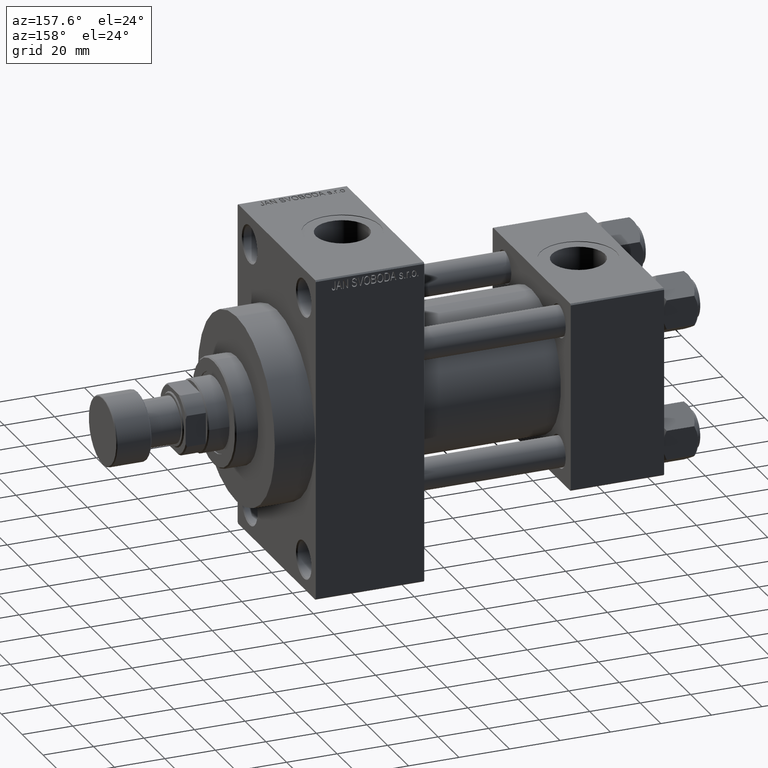
[diagram: clean part render]
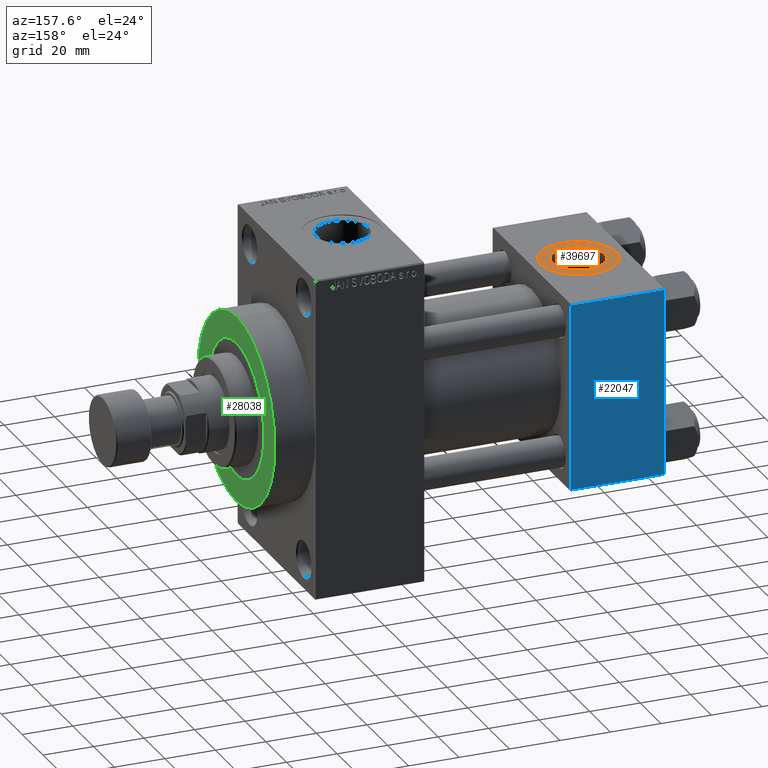
[diagram: same view with three faces highlighted in distinct colors, each labeled with its STEP entity id]
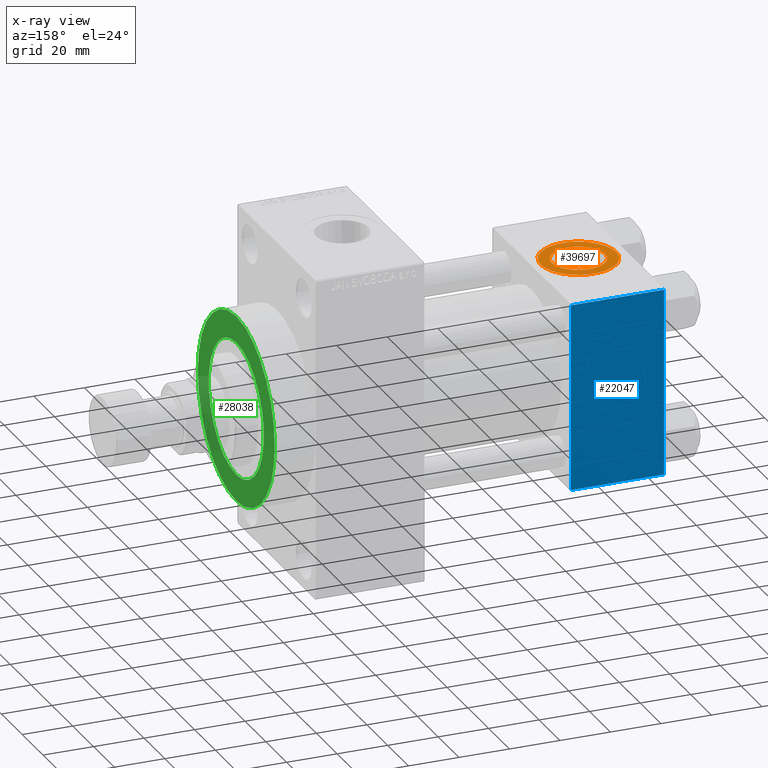
[diagram: x-ray of the same camera — body ghosted, the three highlighted faces saturated]
A machine part, auxiliary view with three faces highlighted in distinct colors.
The next image is the same camera in x-ray (body ghosted, the three faces saturated) — at least one of them is partly hidden behind the body in this view.
Their STEP definitions:

[orange] entity #39697 — the highlighted planar face has unit normal (0, 0, 1).
#929 = ORIENTED_EDGE ( 'NONE', *, *, #27861, .T. ) ;
#1139 = ORIENTED_EDGE ( 'NONE', *, *, #11661, .F. ) ;
#1948 = AXIS2_PLACEMENT_3D ( 'NONE', #10782, #3567, #5462 ) ;
#2655 = ORIENTED_EDGE ( 'NONE', *, *, #31193, .F. ) ;
#2881 = EDGE_LOOP ( 'NONE', ( #39217, #929 ) ) ;
#3068 = DIRECTION ( 'NONE',  ( 1.000000000000000000, 0.000000000000000000, 0.000000000000000000 ) ) ;
#3567 = DIRECTION ( 'NONE',  ( 0.000000000000000000, 0.000000000000000000, 1.000000000000000000 ) ) ;
#5462 = DIRECTION ( 'NONE',  ( 1.000000000000000000, 0.000000000000000000, -0.000000000000000000 ) ) ;
#5525 = AXIS2_PLACEMENT_3D ( 'NONE', #6222, #14387, #39707 ) ;
#5624 = DIRECTION ( 'NONE',  ( 1.000000000000000000, 0.000000000000000000, 0.000000000000000000 ) ) ;
#6222 = CARTESIAN_POINT ( 'NONE',  ( 18.50000000000000000, -5.204170427930421283E-15, 37.29999999999999716 ) ) ;
#7821 = CIRCLE ( 'NONE', #16268, 10.48000000000000043 ) ;
#7885 = FACE_OUTER_BOUND ( 'NONE', #2881, .T. ) ;
#8834 = EDGE_CURVE ( 'NONE', #23267, #10880, #40045, .T. ) ;
#9671 = VERTEX_POINT ( 'NONE', #18801 ) ;
#10782 = CARTESIAN_POINT ( 'NONE',  ( 18.50000000000000000, -5.204170427930421283E-15, 37.29999999999999716 ) ) ;
#10880 = VERTEX_POINT ( 'NONE', #39317 ) ;
#11398 = CARTESIAN_POINT ( 'NONE',  ( 18.50000000000000000, -5.204170427930421283E-15, 37.29999999999999716 ) ) ;
#11661 = EDGE_CURVE ( 'NONE', #9671, #43694, #7821, .T. ) ;
#13305 = CARTESIAN_POINT ( 'NONE',  ( 18.50000000000000000, -5.204170427930421283E-15, 37.29999999999999716 ) ) ;
#14387 = DIRECTION ( 'NONE',  ( 0.000000000000000000, 0.000000000000000000, 1.000000000000000000 ) ) ;
#16268 = AXIS2_PLACEMENT_3D ( 'NONE', #11398, #36726, #21775 ) ;
#16644 = CARTESIAN_POINT ( 'NONE',  ( 33.50000000000000000, -5.204170427930421283E-15, 37.29999999999999716 ) ) ;
#18233 = CIRCLE ( 'NONE', #45164, 15.00000000000000355 ) ;
#18249 = CARTESIAN_POINT ( 'NONE',  ( 18.50000000000000000, -5.204170427930421283E-15, 37.29999999999999716 ) ) ;
#18801 = CARTESIAN_POINT ( 'NONE',  ( 28.98000000000000043, -5.204170427930421283E-15, 37.29999999999999716 ) ) ;
#21775 = DIRECTION ( 'NONE',  ( 1.000000000000000000, 0.000000000000000000, 0.000000000000000000 ) ) ;
#23267 = VERTEX_POINT ( 'NONE', #16644 ) ;
#27861 = EDGE_CURVE ( 'NONE', #10880, #23267, #18233, .T. ) ;
#28013 = DIRECTION ( 'NONE',  ( 0.000000000000000000, 0.000000000000000000, 1.000000000000000000 ) ) ;
#31193 = EDGE_CURVE ( 'NONE', #43694, #9671, #39416, .T. ) ;
#31995 = EDGE_LOOP ( 'NONE', ( #1139, #2655 ) ) ;
#32950 = DIRECTION ( 'NONE',  ( 0.000000000000000000, 0.000000000000000000, 1.000000000000000000 ) ) ;
#36726 = DIRECTION ( 'NONE',  ( 0.000000000000000000, 0.000000000000000000, 1.000000000000000000 ) ) ;
#38669 = AXIS2_PLACEMENT_3D ( 'NONE', #13305, #28013, #5624 ) ;
#38810 = CARTESIAN_POINT ( 'NONE',  ( 8.019999999999999574, -3.920740582423995006E-15, 37.29999999999999716 ) ) ;
#39217 = ORIENTED_EDGE ( 'NONE', *, *, #8834, .T. ) ;
#39317 = CARTESIAN_POINT ( 'NONE',  ( 3.499999999999997780, -3.367200229209391300E-15, 37.29999999999999716 ) ) ;
#39416 = CIRCLE ( 'NONE', #38669, 10.48000000000000043 ) ;
#39697 = ADVANCED_FACE ( 'NONE', ( #44501, #7885 ), #43794, .T. ) ;
#39707 = DIRECTION ( 'NONE',  ( 1.000000000000000000, 0.000000000000000000, 0.000000000000000000 ) ) ;
#40045 = CIRCLE ( 'NONE', #5525, 15.00000000000000355 ) ;
#43694 = VERTEX_POINT ( 'NONE', #38810 ) ;
#43794 = PLANE ( 'NONE',  #1948 ) ;
#44501 = FACE_BOUND ( 'NONE', #31995, .T. ) ;
#45164 = AXIS2_PLACEMENT_3D ( 'NONE', #18249, #32950, #3068 ) ;

[blue] entity #22047 — the highlighted planar face has unit normal (0, 1, 0).
#619 = ORIENTED_EDGE ( 'NONE', *, *, #14810, .T. ) ;
#654 = CARTESIAN_POINT ( 'NONE',  ( 0.000000000000000000, 37.49999999999999289, 37.50000000000000000 ) ) ;
#966 = CARTESIAN_POINT ( 'NONE',  ( 37.00000000000000000, 37.49999999999999289, -36.99999999999998579 ) ) ;
#2007 = DIRECTION ( 'NONE',  ( 0.000000000000000000, -0.000000000000000000, 1.000000000000000000 ) ) ;
#2894 = VERTEX_POINT ( 'NONE', #42112 ) ;
#3987 = CARTESIAN_POINT ( 'NONE',  ( 0.000000000000000000, 37.49999999999999289, 37.00000000000000000 ) ) ;
#5043 = VERTEX_POINT ( 'NONE', #3987 ) ;
#7438 = DIRECTION ( 'NONE',  ( 0.000000000000000000, 0.000000000000000000, -1.000000000000000000 ) ) ;
#9720 = DIRECTION ( 'NONE',  ( -0.000000000000000000, 1.000000000000000000, 0.000000000000000000 ) ) ;
#11719 = ORIENTED_EDGE ( 'NONE', *, *, #37405, .F. ) ;
#12805 = LINE ( 'NONE', #28220, #26389 ) ;
#13084 = CARTESIAN_POINT ( 'NONE',  ( 37.00000000000000000, 37.49999999999999289, 37.50000000000000000 ) ) ;
#13354 = LINE ( 'NONE', #20367, #33509 ) ;
#14076 = LINE ( 'NONE', #43485, #20240 ) ;
#14810 = EDGE_CURVE ( 'NONE', #2894, #35828, #14076, .T. ) ;
#14907 = EDGE_CURVE ( 'NONE', #35828, #25062, #12805, .T. ) ;
#15907 = ORIENTED_EDGE ( 'NONE', *, *, #39284, .T. ) ;
#16938 = FACE_OUTER_BOUND ( 'NONE', #37018, .T. ) ;
#20240 = VECTOR ( 'NONE', #21563, 1000.000000000000000 ) ;
#20367 = CARTESIAN_POINT ( 'NONE',  ( 37.00000000000000000, 37.49999999999999289, 37.00000000000000000 ) ) ;
#20750 = DIRECTION ( 'NONE',  ( -1.000000000000000000, 0.000000000000000000, 0.000000000000000000 ) ) ;
#21563 = DIRECTION ( 'NONE',  ( 0.000000000000000000, 0.000000000000000000, -1.000000000000000000 ) ) ;
#22047 = ADVANCED_FACE ( 'NONE', ( #16938 ), #31643, .T. ) ;
#23974 = DIRECTION ( 'NONE',  ( 1.000000000000000000, 0.000000000000000000, 0.000000000000000000 ) ) ;
#25062 = VERTEX_POINT ( 'NONE', #46070 ) ;
#26389 = VECTOR ( 'NONE', #20750, 1000.000000000000000 ) ;
#26496 = ORIENTED_EDGE ( 'NONE', *, *, #14907, .T. ) ;
#28220 = CARTESIAN_POINT ( 'NONE',  ( 37.00000000000000000, 37.49999999999999289, -36.99999999999998579 ) ) ;
#30542 = LINE ( 'NONE', #654, #38843 ) ;
#31137 = AXIS2_PLACEMENT_3D ( 'NONE', #13084, #9720, #2007 ) ;
#31643 = PLANE ( 'NONE',  #31137 ) ;
#33509 = VECTOR ( 'NONE', #23974, 1000.000000000000000 ) ;
#35828 = VERTEX_POINT ( 'NONE', #966 ) ;
#37018 = EDGE_LOOP ( 'NONE', ( #619, #26496, #11719, #15907 ) ) ;
#37405 = EDGE_CURVE ( 'NONE', #5043, #25062, #30542, .T. ) ;
#38843 = VECTOR ( 'NONE', #7438, 1000.000000000000000 ) ;
#39284 = EDGE_CURVE ( 'NONE', #5043, #2894, #13354, .T. ) ;
#42112 = CARTESIAN_POINT ( 'NONE',  ( 37.00000000000000000, 37.49999999999999289, 37.00000000000000000 ) ) ;
#43485 = CARTESIAN_POINT ( 'NONE',  ( 37.00000000000000000, 37.49999999999999289, 37.50000000000000000 ) ) ;
#46070 = CARTESIAN_POINT ( 'NONE',  ( 0.000000000000000000, 37.49999999999999289, -36.99999999999998579 ) ) ;

[green] entity #28038 — the highlighted planar face has unit normal (1, 0, 0).
#1501 = CARTESIAN_POINT ( 'NONE',  ( 154.0000000000000284, 0.000000000000000000, 0.000000000000000000 ) ) ;
#1843 = CIRCLE ( 'NONE', #8010, 26.50000000000000355 ) ;
#2712 = ORIENTED_EDGE ( 'NONE', *, *, #7279, .F. ) ;
#3037 = VERTEX_POINT ( 'NONE', #19177 ) ;
#5131 = DIRECTION ( 'NONE',  ( 0.000000000000000000, 0.000000000000000000, -1.000000000000000000 ) ) ;
#7279 = EDGE_CURVE ( 'NONE', #3037, #7619, #13928, .T. ) ;
#7402 = CARTESIAN_POINT ( 'NONE',  ( 154.0000000000000284, 0.000000000000000000, 0.000000000000000000 ) ) ;
#7619 = VERTEX_POINT ( 'NONE', #18060 ) ;
#8010 = AXIS2_PLACEMENT_3D ( 'NONE', #19778, #11810, #15191 ) ;
#9069 = FACE_BOUND ( 'NONE', #27408, .T. ) ;
#10140 = CARTESIAN_POINT ( 'NONE',  ( 154.0000000000000284, 0.000000000000000000, 37.00000000000000000 ) ) ;
#10610 = CARTESIAN_POINT ( 'NONE',  ( 154.0000000000000284, 4.531193156845206793E-15, -37.00000000000000000 ) ) ;
#11810 = DIRECTION ( 'NONE',  ( 1.000000000000000000, 0.000000000000000000, 0.000000000000000000 ) ) ;
#12955 = DIRECTION ( 'NONE',  ( 1.000000000000000000, 0.000000000000000000, 0.000000000000000000 ) ) ;
#13612 = DIRECTION ( 'NONE',  ( 1.000000000000000000, 0.000000000000000000, 0.000000000000000000 ) ) ;
#13928 = CIRCLE ( 'NONE', #44716, 26.50000000000000355 ) ;
#14120 = AXIS2_PLACEMENT_3D ( 'NONE', #1501, #30183, #5131 ) ;
#15191 = DIRECTION ( 'NONE',  ( 0.000000000000000000, 0.000000000000000000, -1.000000000000000000 ) ) ;
#16750 = CARTESIAN_POINT ( 'NONE',  ( 154.0000000000000284, 0.000000000000000000, 0.000000000000000000 ) ) ;
#18060 = CARTESIAN_POINT ( 'NONE',  ( 154.0000000000000284, 0.000000000000000000, -26.50000000000000355 ) ) ;
#19177 = CARTESIAN_POINT ( 'NONE',  ( 154.0000000000000284, 3.245314017740486554E-15, 26.50000000000000355 ) ) ;
#19778 = CARTESIAN_POINT ( 'NONE',  ( 154.0000000000000284, 0.000000000000000000, 0.000000000000000000 ) ) ;
#19848 = DIRECTION ( 'NONE',  ( 1.000000000000000000, 0.000000000000000000, 0.000000000000000000 ) ) ;
#20543 = AXIS2_PLACEMENT_3D ( 'NONE', #45982, #12955, #38754 ) ;
#24742 = EDGE_LOOP ( 'NONE', ( #43471, #28076 ) ) ;
#27408 = EDGE_LOOP ( 'NONE', ( #29171, #2712 ) ) ;
#27713 = EDGE_CURVE ( 'NONE', #33734, #40232, #45959, .T. ) ;
#28038 = ADVANCED_FACE ( 'NONE', ( #9069, #37268 ), #45451, .T. ) ;
#28076 = ORIENTED_EDGE ( 'NONE', *, *, #27713, .T. ) ;
#29171 = ORIENTED_EDGE ( 'NONE', *, *, #35840, .F. ) ;
#30183 = DIRECTION ( 'NONE',  ( 1.000000000000000000, 0.000000000000000000, 0.000000000000000000 ) ) ;
#31339 = AXIS2_PLACEMENT_3D ( 'NONE', #16750, #13612, #35090 ) ;
#33734 = VERTEX_POINT ( 'NONE', #10610 ) ;
#35090 = DIRECTION ( 'NONE',  ( 0.000000000000000000, 0.000000000000000000, -1.000000000000000000 ) ) ;
#35501 = EDGE_CURVE ( 'NONE', #40232, #33734, #45683, .T. ) ;
#35840 = EDGE_CURVE ( 'NONE', #7619, #3037, #1843, .T. ) ;
#37268 = FACE_OUTER_BOUND ( 'NONE', #24742, .T. ) ;
#38754 = DIRECTION ( 'NONE',  ( 0.000000000000000000, 0.000000000000000000, -1.000000000000000000 ) ) ;
#40232 = VERTEX_POINT ( 'NONE', #10140 ) ;
#43471 = ORIENTED_EDGE ( 'NONE', *, *, #35501, .T. ) ;
#44479 = DIRECTION ( 'NONE',  ( 0.000000000000000000, 0.000000000000000000, -1.000000000000000000 ) ) ;
#44716 = AXIS2_PLACEMENT_3D ( 'NONE', #7402, #19848, #44479 ) ;
#45451 = PLANE ( 'NONE',  #31339 ) ;
#45683 = CIRCLE ( 'NONE', #14120, 37.00000000000000000 ) ;
#45959 = CIRCLE ( 'NONE', #20543, 37.00000000000000000 ) ;
#45982 = CARTESIAN_POINT ( 'NONE',  ( 154.0000000000000284, 0.000000000000000000, 0.000000000000000000 ) ) ;